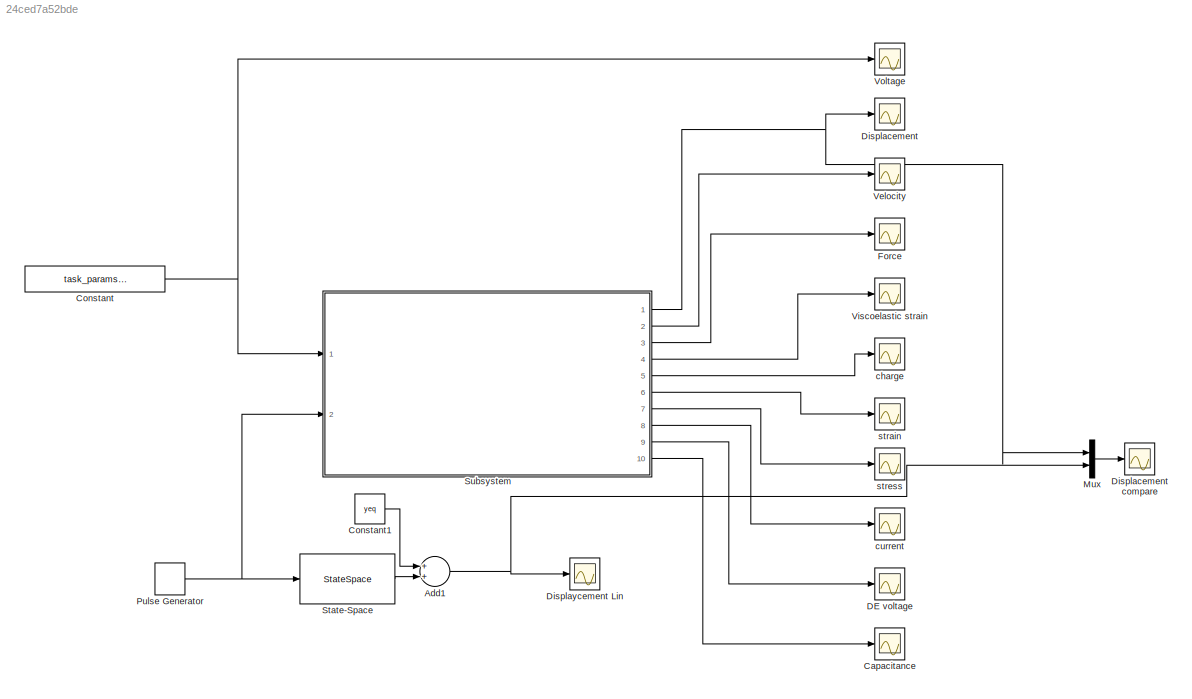
MODEL slx_24ced7a52bde
KIND model
CONFIG AbsTol = auto
CONFIG EnableMultiTasking = on
CONFIG FixedStep = auto
CONFIG InitFcn = Parameter;
CONFIG MaxStep = auto
CONFIG MinStep = auto
CONFIG RelTol = auto
CONFIG SampleTimeConstraint = Unconstrained
CONFIG Solver = ode23t
CONFIG SolverName = ode23t
CONFIG StartTime = 0.0
CONFIG StopTime = 50
BLOCK [Sum] Add1
  InputSameDT = off
  OutDataTypeStr = Inherit: Inherit via internal rule
  Ports = [2, 1]
  SaturateOnIntegerOverflow = off
BLOCK [Scope] Capacitance
  Floating = off
  NumInputPorts = 1
  Ports = [1]
  ScopeSpecificationString = Simulink.scopes.TimeScopeBlockCfg('CurrentConfiguration', extmgr.ConfigurationSet(extmgr.Configuration('Core','General UI',true),extmgr.Configuration('Core','Source UI',true),extmgr.Configuration('Sources','WiredSimulink',true,'DataLoggingVariableName','ScopeData7'),extmgr.Configuration('Visuals','Time Domain',true,'SerializedDisplays',{struct('MinYLimReal','-10','MaxYLimReal','10','YLabelReal',''...<+1317ch>
BLOCK [Constant] Constant
  Value = task_params.voltage_high
BLOCK [Constant] Constant1
  Value = yeq
BLOCK [Scope] DE voltage
  Floating = off
  NumInputPorts = 1
  Ports = [1]
  ScopeSpecificationString = Simulink.scopes.TimeScopeBlockCfg('CurrentConfiguration', extmgr.ConfigurationSet(extmgr.Configuration('Core','General UI',true),extmgr.Configuration('Core','Source UI',true),extmgr.Configuration('Sources','WiredSimulink',true,'DataLoggingVariableName','ScopeData6'),extmgr.Configuration('Visuals','Time Domain',true,'SerializedDisplays',{struct('MinYLimReal','-10','MaxYLimReal','10','YLabelReal',''...<+1317ch>
BLOCK [Scope] Displacement
  Floating = off
  NumInputPorts = 1
  Ports = [1]
  ScopeSpecificationString = Simulink.scopes.TimeScopeBlockCfg('CurrentConfiguration', extmgr.ConfigurationSet(extmgr.Configuration('Core','General UI',true),extmgr.Configuration('Core','Source UI',true),extmgr.Configuration('Sources','WiredSimulink',true,'DataLoggingVariableName','ScopeData9'),extmgr.Configuration('Visuals','Time Domain',true,'SerializedDisplays',{struct('MinYLimReal','0.01446','MaxYLimReal','0.01596','YLabe...<+1440ch>
BLOCK [Scope] Displacement compare 
  Floating = off
  NumInputPorts = 1
  Ports = [1]
  ScopeSpecificationString = Simulink.scopes.TimeScopeBlockCfg('CurrentConfiguration', extmgr.ConfigurationSet(extmgr.Configuration('Core','General UI',true),extmgr.Configuration('Core','Source UI',true),extmgr.Configuration('Sources','WiredSimulink',true,'DataLoggingVariableName','ScopeData2'),extmgr.Configuration('Visuals','Time Domain',true,'SerializedDisplays',{struct('MinYLimReal','0.01413','MaxYLimReal','0.01894','YLabe...<+1472ch>
BLOCK [Scope] Displaycement Lin 
  Floating = off
  NumInputPorts = 1
  Ports = [1]
  ScopeSpecificationString = Simulink.scopes.TimeScopeBlockCfg('CurrentConfiguration', extmgr.ConfigurationSet(extmgr.Configuration('Core','General UI',true),extmgr.Configuration('Core','Source UI',true),extmgr.Configuration('Sources','WiredSimulink',true,'DataLoggingVariableName','ScopeData1'),extmgr.Configuration('Visuals','Time Domain',true,'SerializedDisplays',{struct('MinYLimReal','-0.01363','MaxYLimReal','0.01911','YLab...<+1434ch>
BLOCK [Scope] Force
  Floating = off
  NumInputPorts = 1
  Ports = [1]
  ScopeSpecificationString = Simulink.scopes.TimeScopeBlockCfg('CurrentConfiguration', extmgr.ConfigurationSet(extmgr.Configuration('Core','General UI',true),extmgr.Configuration('Core','Source UI',true),extmgr.Configuration('Sources','WiredSimulink',true),extmgr.Configuration('Visuals','Time Domain',true,'SerializedDisplays',{struct('MinYLimReal','-0.39897','MaxYLimReal','3.59073','YLabelReal','','MinYLimMag','0.00000','MaxY...<+1348ch>
BLOCK [Mux] Mux
  DisplayOption = bar
  Inputs = 2
  Ports = [2, 1]
BLOCK [DiscretePulseGenerator] Pulse Generator
  Amplitude = task_params.fore
  Period = 5
  Ports = [0, 1]
  PulseType = Time based
  PulseWidth = 50
BLOCK [StateSpace] State-Space
  A = A
  B = Bd
  C = C
  D = Dd
  InitialCondition = 0
  Ports = [1, 1]
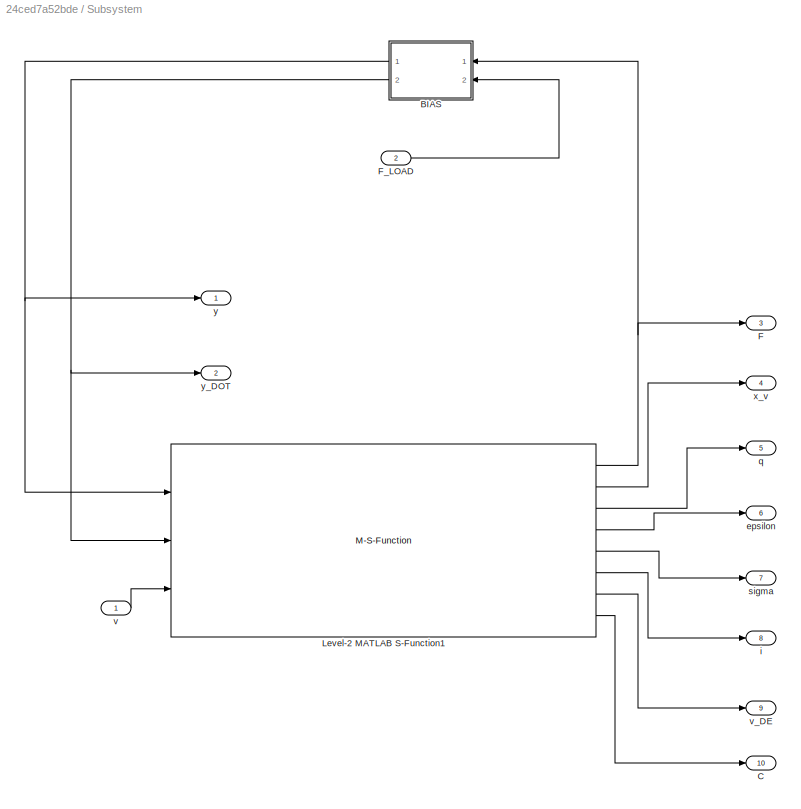
BLOCK [SubSystem] Subsystem
  Ports = [2, 10]
  RequestExecContextInheritance = off
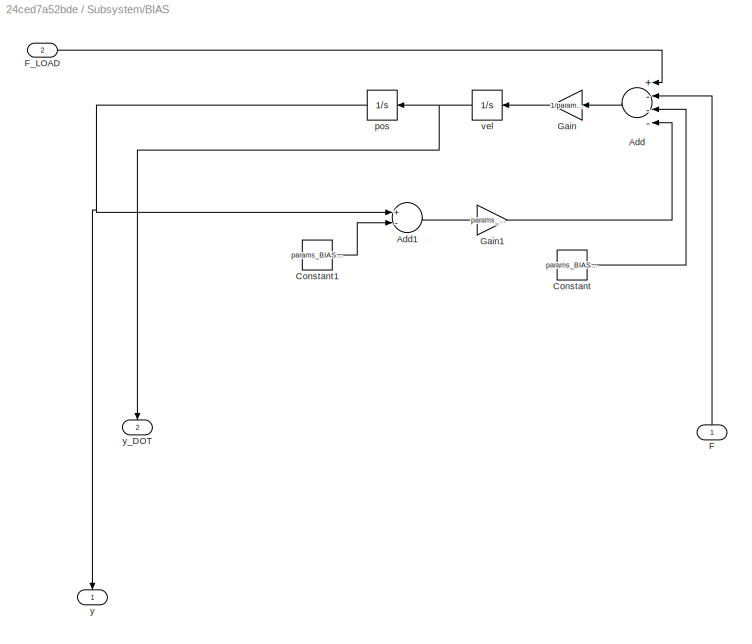
BLOCK [SubSystem] Subsystem/BIAS
  Ports = [2, 2]
  RequestExecContextInheritance = off
BLOCK [Sum] Subsystem/BIAS/Add
  InputSameDT = off
  Inputs = +---
  OutDataTypeStr = Inherit: Inherit via internal rule
  Ports = [4, 1]
  SaturateOnIntegerOverflow = off
BLOCK [Sum] Subsystem/BIAS/Add1
  InputSameDT = off
  Inputs = +-
  OutDataTypeStr = Inherit: Inherit via internal rule
  Ports = [2, 1]
  SaturateOnIntegerOverflow = off
BLOCK [Constant] Subsystem/BIAS/Constant
  Value = params_BIAS.m*params_BIAS.g
BLOCK [Constant] Subsystem/BIAS/Constant1
  Value = params_BIAS.y0l
BLOCK [Inport] Subsystem/BIAS/F
  IconDisplay = Port number
BLOCK [Inport] Subsystem/BIAS/F_LOAD
  IconDisplay = Port number
  Port = 2
BLOCK [Gain] Subsystem/BIAS/Gain
  Gain = 1/params_BIAS.m
  OutDataTypeStr = Inherit: Inherit via internal rule
  ParamDataTypeStr = Inherit: Inherit via internal rule
  SaturateOnIntegerOverflow = off
BLOCK [Gain] Subsystem/BIAS/Gain1
  Gain = params_BIAS.kl
  OutDataTypeStr = Inherit: Inherit via internal rule
  ParamDataTypeStr = Inherit: Inherit via internal rule
  SaturateOnIntegerOverflow = off
BLOCK [Integrator] Subsystem/BIAS/pos
  InitialCondition = initConds.y
  Ports = [1, 1]
BLOCK [Integrator] Subsystem/BIAS/vel
  InitialCondition = initConds.y_dot
  Ports = [1, 1]
BLOCK [Outport] Subsystem/BIAS/y
  IconDisplay = Port number
BLOCK [Outport] Subsystem/BIAS/y_DOT
  IconDisplay = Port number
  Port = 2
BLOCK [Outport] Subsystem/C
  IconDisplay = Port number
  Port = 10
BLOCK [Outport] Subsystem/F
  IconDisplay = Port number
  Port = 3
BLOCK [Inport] Subsystem/F_LOAD
  IconDisplay = Port number
  Port = 2
BLOCK [M-S-Function] Subsystem/Level-2 MATLAB S-Function1
  FunctionName = sDE_dispIn
  Parameters = params, initConds
  Ports = [3, 8]
BLOCK [Outport] Subsystem/epsilon
  IconDisplay = Port number
  Port = 6
BLOCK [Outport] Subsystem/i
  IconDisplay = Port number
  Port = 8
BLOCK [Outport] Subsystem/q
  IconDisplay = Port number
  Port = 5
BLOCK [Outport] Subsystem/sigma
  IconDisplay = Port number
  Port = 7
BLOCK [Inport] Subsystem/v
  IconDisplay = Port number
BLOCK [Outport] Subsystem/v_DE
  IconDisplay = Port number
  Port = 9
BLOCK [Outport] Subsystem/x_v
  IconDisplay = Port number
  Port = 4
BLOCK [Outport] Subsystem/y
  IconDisplay = Port number
BLOCK [Outport] Subsystem/y_DOT
  IconDisplay = Port number
  Port = 2
BLOCK [Scope] Velocity
  Floating = off
  NumInputPorts = 1
  Ports = [1]
  ScopeSpecificationString = Simulink.scopes.TimeScopeBlockCfg('CurrentConfiguration', extmgr.ConfigurationSet(extmgr.Configuration('Core','General UI',true),extmgr.Configuration('Core','Source UI',true),extmgr.Configuration('Sources','WiredSimulink',true,'DataLoggingVariableName','ScopeData8'),extmgr.Configuration('Visuals','Time Domain',true,'SerializedDisplays',{struct('MinYLimReal','-10','MaxYLimReal','10','YLabelReal',''...<+1317ch>
BLOCK [Scope] Viscoelastic strain
  Floating = off
  NumInputPorts = 1
  Ports = [1]
  ScopeSpecificationString = Simulink.scopes.TimeScopeBlockCfg('CurrentConfiguration', extmgr.ConfigurationSet(extmgr.Configuration('Core','General UI',true),extmgr.Configuration('Core','Source UI',true),extmgr.Configuration('Sources','WiredSimulink',true,'DataLoggingVariableName','ScopeData1'),extmgr.Configuration('Visuals','Time Domain',true,'SerializedDisplays',{struct('MinYLimReal','0.73805','MaxYLimReal','0.92267','YLabe...<+1445ch>
BLOCK [Scope] Voltage
  Floating = off
  NumInputPorts = 1
  Ports = [1]
  ScopeSpecificationString = Simulink.scopes.TimeScopeBlockCfg('CurrentConfiguration', extmgr.ConfigurationSet(extmgr.Configuration('Core','General UI',true),extmgr.Configuration('Core','Source UI',true),extmgr.Configuration('Sources','WiredSimulink',true,'DataLoggingVariableName','ScopeData10'),extmgr.Configuration('Visuals','Time Domain',true,'SerializedDisplays',{struct('MinYLimReal','2488.75','MaxYLimReal','2501.25','YLab...<+1386ch>
BLOCK [Scope] charge
  Floating = off
  NumInputPorts = 1
  Ports = [1]
  ScopeSpecificationString = Simulink.scopes.TimeScopeBlockCfg('CurrentConfiguration', extmgr.ConfigurationSet(extmgr.Configuration('Core','General UI',true),extmgr.Configuration('Core','Source UI',true),extmgr.Configuration('Sources','WiredSimulink',true,'DataLoggingVariableName','ScopeData2'),extmgr.Configuration('Visuals','Time Domain',true,'SerializedDisplays',{struct('MinYLimReal','-10','MaxYLimReal','10','YLabelReal',''...<+1317ch>
BLOCK [Scope] current
  Floating = off
  NumInputPorts = 1
  Ports = [1]
  ScopeSpecificationString = Simulink.scopes.TimeScopeBlockCfg('CurrentConfiguration', extmgr.ConfigurationSet(extmgr.Configuration('Core','General UI',true),extmgr.Configuration('Core','Source UI',true),extmgr.Configuration('Sources','WiredSimulink',true,'DataLoggingVariableName','ScopeData5'),extmgr.Configuration('Visuals','Time Domain',true,'SerializedDisplays',{struct('MinYLimReal','-10','MaxYLimReal','10','YLabelReal',''...<+1317ch>
BLOCK [Scope] strain
  Floating = off
  NumInputPorts = 1
  Ports = [1]
  ScopeSpecificationString = Simulink.scopes.TimeScopeBlockCfg('CurrentConfiguration', extmgr.ConfigurationSet(extmgr.Configuration('Core','General UI',true),extmgr.Configuration('Core','Source UI',true),extmgr.Configuration('Sources','WiredSimulink',true,'DataLoggingVariableName','ScopeData3'),extmgr.Configuration('Visuals','Time Domain',true,'SerializedDisplays',{struct('MinYLimReal','0.8009729','MaxYLimReal','0.800979','YL...<+1451ch>
BLOCK [Scope] stress
  Floating = off
  NumInputPorts = 1
  Ports = [1]
  ScopeSpecificationString = Simulink.scopes.TimeScopeBlockCfg('CurrentConfiguration', extmgr.ConfigurationSet(extmgr.Configuration('Core','General UI',true),extmgr.Configuration('Core','Source UI',true),extmgr.Configuration('Sources','WiredSimulink',true,'DataLoggingVariableName','ScopeData4'),extmgr.Configuration('Visuals','Time Domain',true,'SerializedDisplays',{struct('MinYLimReal','-10','MaxYLimReal','10','YLabelReal',''...<+1317ch>
NET Add1:1 -> Displaycement Lin :1, Mux:2
LINE Constant1:1 -> Add1:1
NET Constant:1 -> Subsystem:1, Voltage:1
LINE Mux:1 -> Displacement compare :1
NET Pulse Generator:1 -> State-Space:1, Subsystem:2
LINE State-Space:1 -> Add1:2
LINE Subsystem/BIAS/Add1:1 -> Subsystem/BIAS/Gain1:1
LINE Subsystem/BIAS/Add:1 -> Subsystem/BIAS/Gain:1
LINE Subsystem/BIAS/Constant1:1 -> Subsystem/BIAS/Add1:2
LINE Subsystem/BIAS/Constant:1 -> Subsystem/BIAS/Add:3
LINE Subsystem/BIAS/F:1 -> Subsystem/BIAS/Add:2
LINE Subsystem/BIAS/F_LOAD:1 -> Subsystem/BIAS/Add:1
LINE Subsystem/BIAS/Gain1:1 -> Subsystem/BIAS/Add:4
LINE Subsystem/BIAS/Gain:1 -> Subsystem/BIAS/vel:1
NET Subsystem/BIAS/pos:1 -> Subsystem/BIAS/Add1:1, Subsystem/BIAS/y:1
NET Subsystem/BIAS/vel:1 -> Subsystem/BIAS/pos:1, Subsystem/BIAS/y_DOT:1
NET Subsystem/BIAS:1 -> Subsystem/Level-2 MATLAB S-Function1:1, Subsystem/y:1
NET Subsystem/BIAS:2 -> Subsystem/Level-2 MATLAB S-Function1:2, Subsystem/y_DOT:1
LINE Subsystem/F_LOAD:1 -> Subsystem/BIAS:2
NET Subsystem/Level-2 MATLAB S-Function1:1 -> Subsystem/BIAS:1, Subsystem/F:1
LINE Subsystem/Level-2 MATLAB S-Function1:2 -> Subsystem/x_v:1
LINE Subsystem/Level-2 MATLAB S-Function1:3 -> Subsystem/q:1
LINE Subsystem/Level-2 MATLAB S-Function1:4 -> Subsystem/epsilon:1
LINE Subsystem/Level-2 MATLAB S-Function1:5 -> Subsystem/sigma:1
LINE Subsystem/Level-2 MATLAB S-Function1:6 -> Subsystem/i:1
LINE Subsystem/Level-2 MATLAB S-Function1:7 -> Subsystem/v_DE:1
LINE Subsystem/Level-2 MATLAB S-Function1:8 -> Subsystem/C:1
LINE Subsystem/v:1 -> Subsystem/Level-2 MATLAB S-Function1:3
NET Subsystem:1 -> Displacement:1, Mux:1
LINE Subsystem:10 -> Capacitance:1
LINE Subsystem:2 -> Velocity:1
LINE Subsystem:3 -> Force:1
LINE Subsystem:4 -> Viscoelastic strain:1
LINE Subsystem:5 -> charge:1
LINE Subsystem:6 -> strain:1
LINE Subsystem:7 -> stress:1
LINE Subsystem:8 -> current:1
LINE Subsystem:9 -> DE voltage:1
note: NET lines group one-source signal fan-out (src -> all destinations, sorted); 1:1 wires keep LINE
